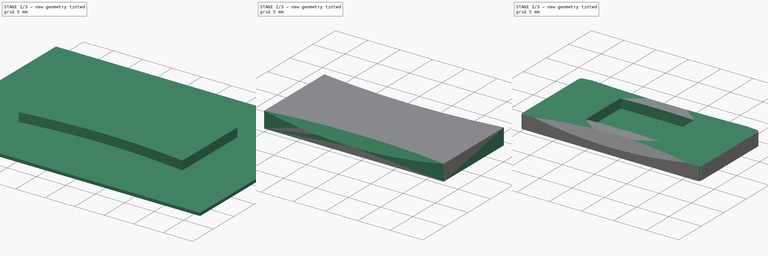
[diagram: build sequence overview — one tinted view per stage of 3, left to right]
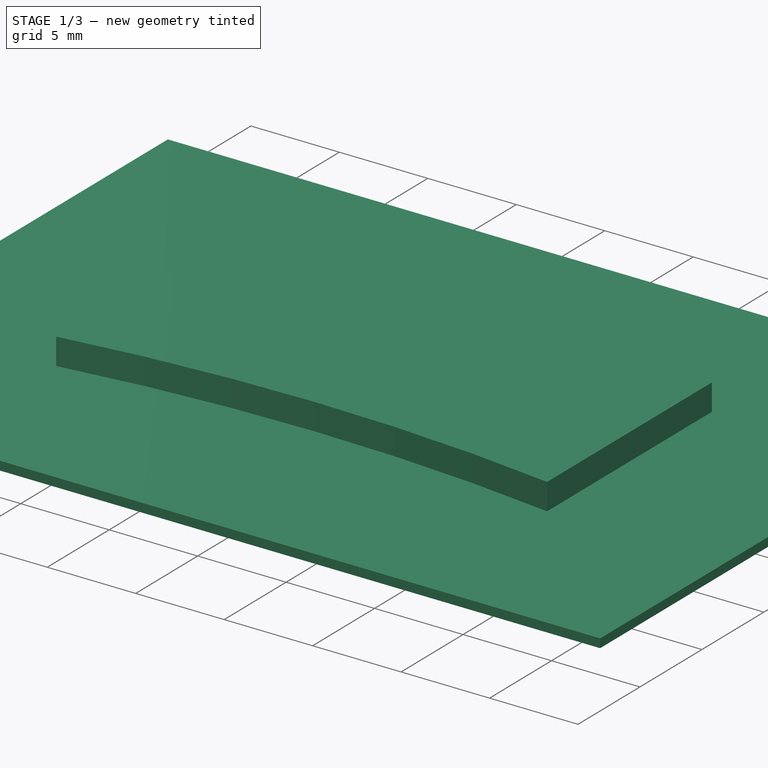
[diagram: stage 1 of 3 — iso view after this stage's code; geometry added in this stage tinted green]
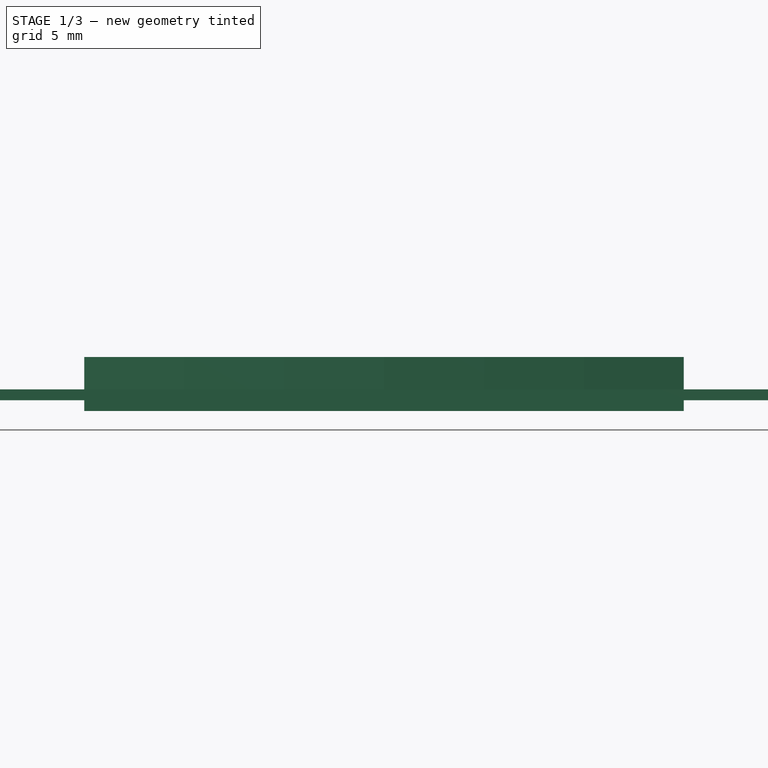
[diagram: stage 1 of 3 — front view after this stage's code; geometry added in this stage tinted green]
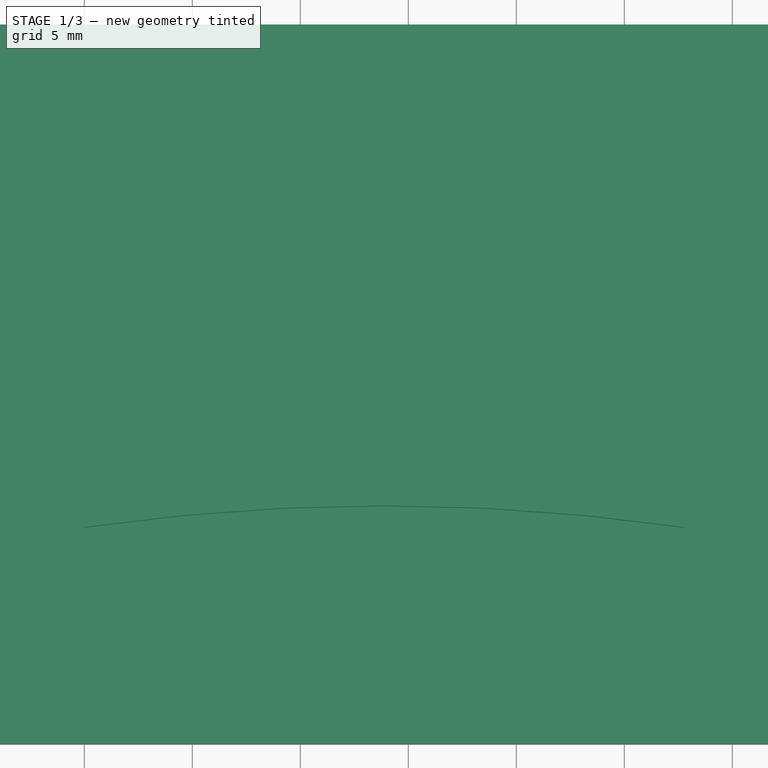
[diagram: stage 1 of 3 — top view after this stage's code; geometry added in this stage tinted green]
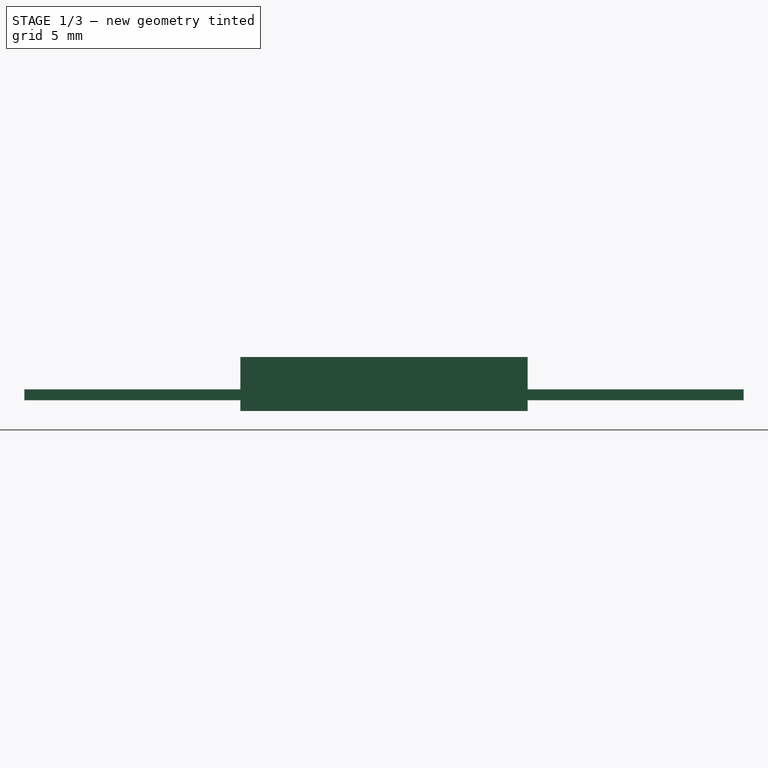
[diagram: stage 1 of 3 — right view after this stage's code; geometry added in this stage tinted green]
FCSTD DOCUMENT  (FreeCAD 0.20R29177 +426 (Git))
Label: GBM Icon
License: All rights reserved
LicenseURL: http://en.wikipedia.org/wiki/All_rights_reserved
objects: Sketcher::SketchObject×5, PartDesign::Pad×3, PartDesign::Pocket×3, PartDesign::Chamfer×1, PartDesign::Fillet×1, PartDesign::Body×1
note: 22 computed .brp shape members not serialized (recipe doc carries the construction recipe); baked Part::Feature solids carry a one-line shape summary decoded from their .brp

FEATURE [Sketcher::SketchObject] Sketch
  FullyConstrained = true
  MapMode = 5
  Support = -> [XY_Plane]
  sketch-geometry (4):
    g0: LineSegment StartX=0 StartY=0 StartZ=0 EndX=27.75 EndY=0 EndZ=0
    g1: LineSegment StartX=27.75 StartY=0 StartZ=0 EndX=27.75 EndY=13.3 EndZ=0
    g2: LineSegment StartX=27.75 StartY=13.3 StartZ=0 EndX=0 EndY=13.3 EndZ=0
    g3: LineSegment StartX=0 StartY=13.3 StartZ=0 EndX=0 EndY=0 EndZ=0
  constraints (11):
    c: Coincident(g0,g1)
    c: Coincident(g1,g2)
    c: Coincident(g2,g3)
    c: Coincident(g3,g0)
    c: Horizontal(g0)
    c: Horizontal(g2)
    c: Vertical(g1)
    c: Vertical(g3)
    c: Coincident(g0,g-1)
    c: Distance(g0) = 27.75
    c: Distance(g1) = 13.3
FEATURE [PartDesign::Pad] Pad
  Direction = (0,0,1)
  Length = 1
  Length2 = 10
  Profile = -> Sketch
  ReferenceAxis = -> Sketch [N_Axis]
  Type = 0
FEATURE [Sketcher::SketchObject] Sketch001
  ExternalGeometry = -> [Pad]
  FullyConstrained = true
  MapMode = 5
  Placement = pos=(0,0,1) rot=(0,0,1;0rad)
  Support = -> [Pad]
  sketch-geometry (6):
    g0: ArcOfCircle CenterX=13.875 CenterY=109.058 CenterZ=0 NormalX=0 NormalY=0 NormalZ=1 AngleXU=0 Radius=96.7578 StartAngle=4.56849 EndAngle=4.85628
    g1: ArcOfCircle CenterX=13.875 CenterY=-95.7578 CenterZ=0 NormalX=0 NormalY=0 NormalZ=1 AngleXU=0 Radius=96.7578 StartAngle=1.4269 EndAngle=1.71469
    g2: LineSegment StartX=3.73e-14 StartY=13.3 StartZ=0 EndX=0 EndY=0 EndZ=0
    g3: LineSegment StartX=27.75 StartY=0 StartZ=0 EndX=27.75 EndY=13.3 EndZ=0
    g4: LineSegment StartX=13.875 StartY=1 StartZ=0 EndX=13.875 EndY=0 EndZ=0
    g5: LineSegment StartX=13.875 StartY=12.3 StartZ=0 EndX=13.875 EndY=13.3 EndZ=0
  constraints (16):
    c: Coincident(g0,g-4)
    c: Coincident(g0,g-4)
    c: Coincident(g1,g-3)
    c: Coincident(g1,g-3)
    c: Coincident(g2,g0)
    c: Coincident(g2,g1)
    c: Coincident(g3,g1)
    c: Coincident(g3,g0)
    c: PointOnObject(g4,g1)
    c: Vertical(g4)
    c: PointOnObject(g5,g0)
    c: Vertical(g5)
    c: Symmetric(g0,g0,g5)
    c: Symmetric(g1,g1,g4)
    c: Equal(g5,g4)
    c: Distance(g5) = 1
FEATURE [PartDesign::Pad] Pad001
  BaseFeature = -> Pad
  Direction = (0,0,1)
  Length = 1.5
  Length2 = 10
  Profile = -> Sketch001
  ReferenceAxis = -> Sketch001 [N_Axis]
  Type = 0
FEATURE [Sketcher::SketchObject] Sketch002
  ExternalGeometry = -> [Pad001]
  FullyConstrained = true
  MapMode = 5
  Placement = pos=(0,0,0) rot=(1,0,0;3.14159rad)
  Support = -> [Pad001]
  sketch-geometry (12):
    g0: LineSegment StartX=0 StartY=0 StartZ=0 EndX=-10 EndY=0 EndZ=0
    g1: LineSegment StartX=-10 StartY=0 StartZ=0 EndX=-10 EndY=10 EndZ=0
    g2: LineSegment StartX=-10 StartY=10 StartZ=0 EndX=0 EndY=10 EndZ=0
    g3: LineSegment StartX=0 StartY=10 StartZ=0 EndX=0 EndY=0 EndZ=0
    g4: LineSegment StartX=27.75 StartY=-13.3 StartZ=0 EndX=37.75 EndY=-13.3 EndZ=0
    g5: LineSegment StartX=37.75 StartY=-13.3 StartZ=0 EndX=37.75 EndY=-23.3 EndZ=0
    g6: LineSegment StartX=37.75 StartY=-23.3 StartZ=0 EndX=27.75 EndY=-23.3 EndZ=0
    g7: LineSegment StartX=27.75 StartY=-23.3 StartZ=0 EndX=27.75 EndY=-13.3 EndZ=0
    g8: LineSegment StartX=-10 StartY=10 StartZ=0 EndX=37.75 EndY=10 EndZ=0
    g9: LineSegment StartX=37.75 StartY=10 StartZ=0 EndX=37.75 EndY=-23.3 EndZ=0
    g10: LineSegment StartX=37.75 StartY=-23.3 StartZ=0 EndX=-10 EndY=-23.3 EndZ=0
    g11: LineSegment StartX=-10 StartY=-23.3 StartZ=0 EndX=-10 EndY=10 EndZ=0
  constraints (32):
    c: Coincident(g0,g1)
    c: Coincident(g1,g2)
    c: Coincident(g2,g3)
    c: Coincident(g3,g0)
    c: Horizontal(g0)
    c: Horizontal(g2)
    c: Vertical(g1)
    c: Vertical(g3)
    c: Coincident(g0,g-1)
    c: Coincident(g4,g5)
    c: Coincident(g5,g6)
    c: Coincident(g6,g7)
    c: Coincident(g7,g4)
    c: Horizontal(g4)
    c: Horizontal(g6)
    c: Vertical(g5)
    c: Vertical(g7)
    c: Coincident(g4,g-3)
    c: Equal(g2,g3)
    c: Equal(g4,g5)
    c: Coincident(g8,g9)
    c: Coincident(g9,g10)
    c: Coincident(g10,g11)
    c: Coincident(g11,g8)
    c: Horizontal(g8)
    c: Horizontal(g10)
    c: Vertical(g9)
    c: Vertical(g11)
    c: Coincident(g8,g1)
    c: Coincident(g9,g5)
    c: Equal(g0,g7)
    c: Distance(g0) = 10
FEATURE [PartDesign::Pad] Pad002
  BaseFeature = -> Pad001
  Direction = (0,0,-1)
  Length = 1
  Length2 = -0.5
  Profile = -> Sketch002
  ReferenceAxis = -> Sketch002 [N_Axis]
  Refine = true
  Reversed = true
  Type = 4
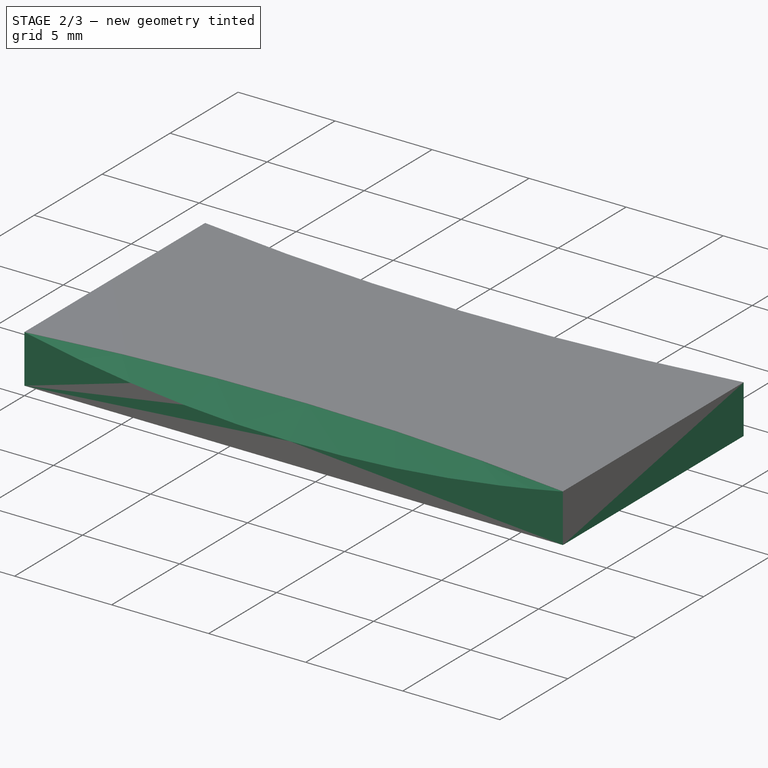
[diagram: stage 2 of 3 — iso view after this stage's code; geometry added in this stage tinted green]
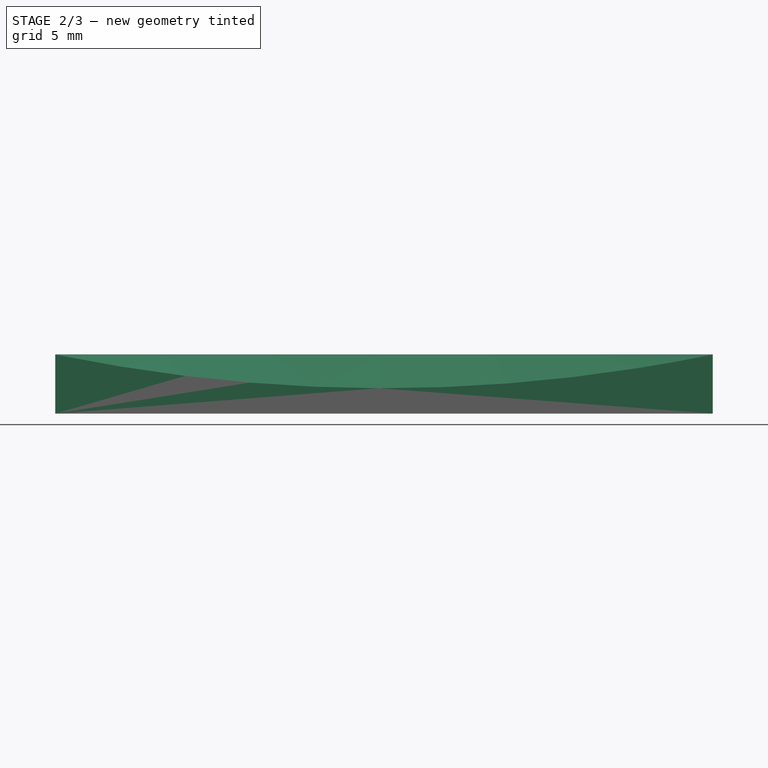
[diagram: stage 2 of 3 — front view after this stage's code; geometry added in this stage tinted green]
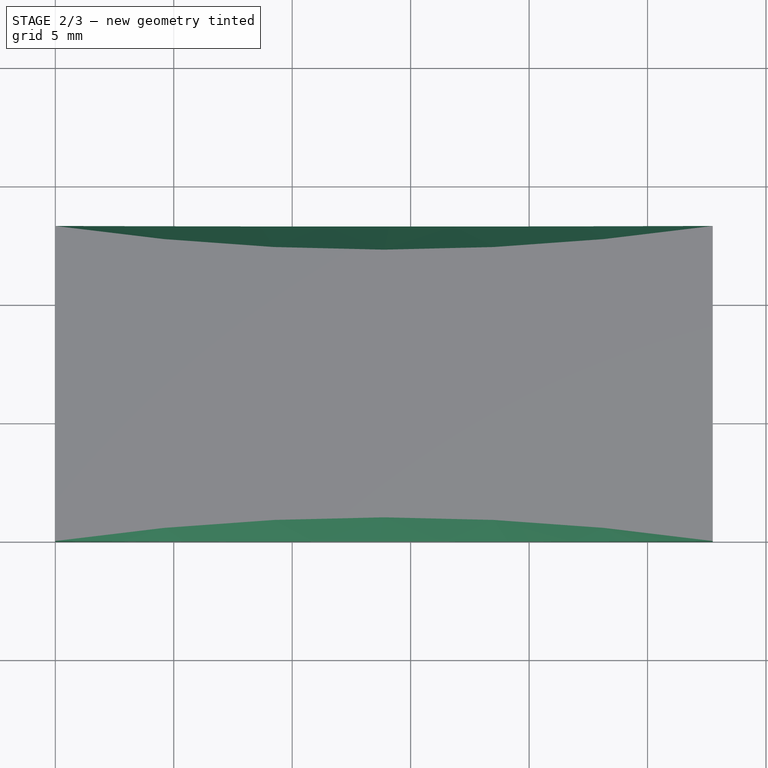
[diagram: stage 2 of 3 — top view after this stage's code; geometry added in this stage tinted green]
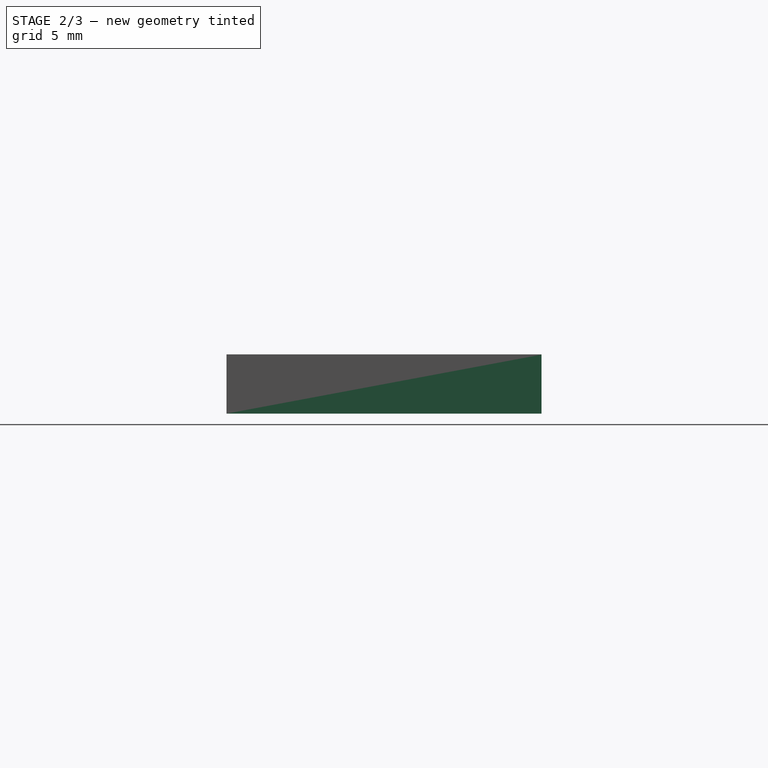
[diagram: stage 2 of 3 — right view after this stage's code; geometry added in this stage tinted green]
FEATURE [PartDesign::Chamfer] Chamfer
  Angle = 45
  Base = -> Pad002 [Edge28,Edge26]
  BaseFeature = -> Pad002
  ChamferType = 1
  FlipDirection = false
  Size = 1.05
  Size2 = 1.49
  SupportTransform = false
  UseAllEdges = false
FEATURE [PartDesign::Pocket] Pocket
  BaseFeature = -> Chamfer
  Direction = (0,0,1)
  Length = 5
  Length2 = 5
  Profile = -> Chamfer [Face13]
  Refine = true
  Type = 0
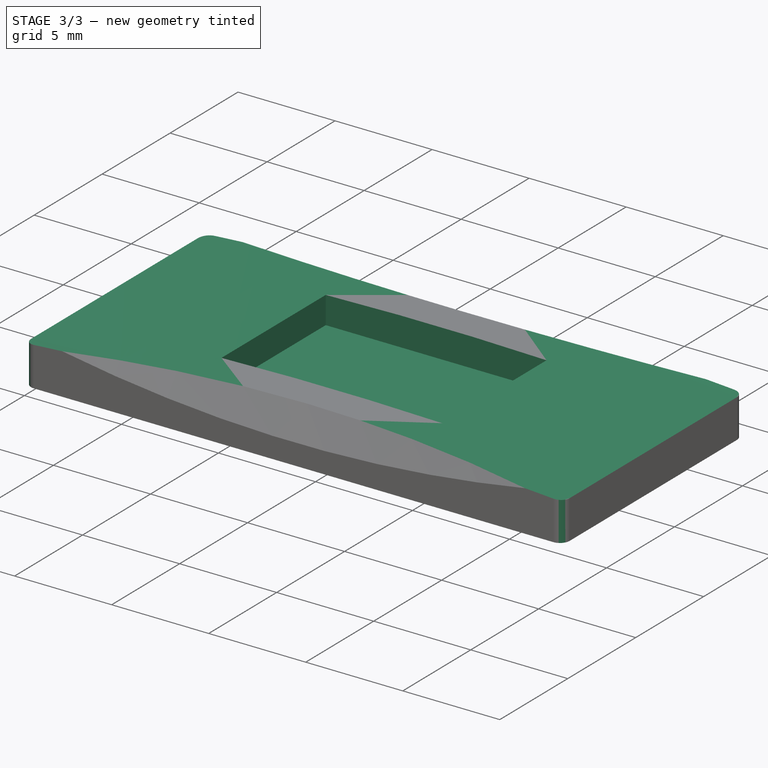
[diagram: stage 3 of 3 — iso view after this stage's code; geometry added in this stage tinted green]
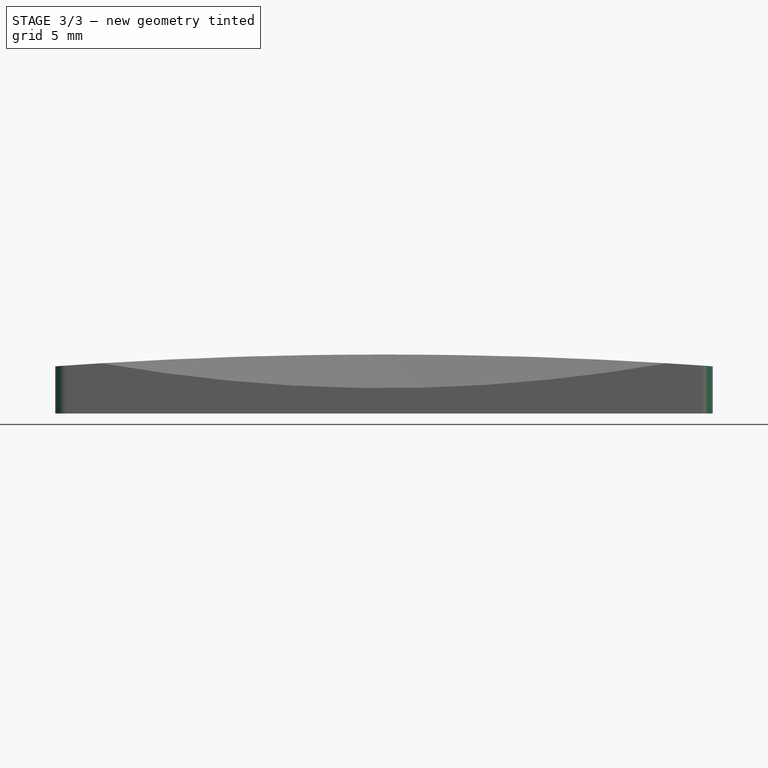
[diagram: stage 3 of 3 — front view after this stage's code; geometry added in this stage tinted green]
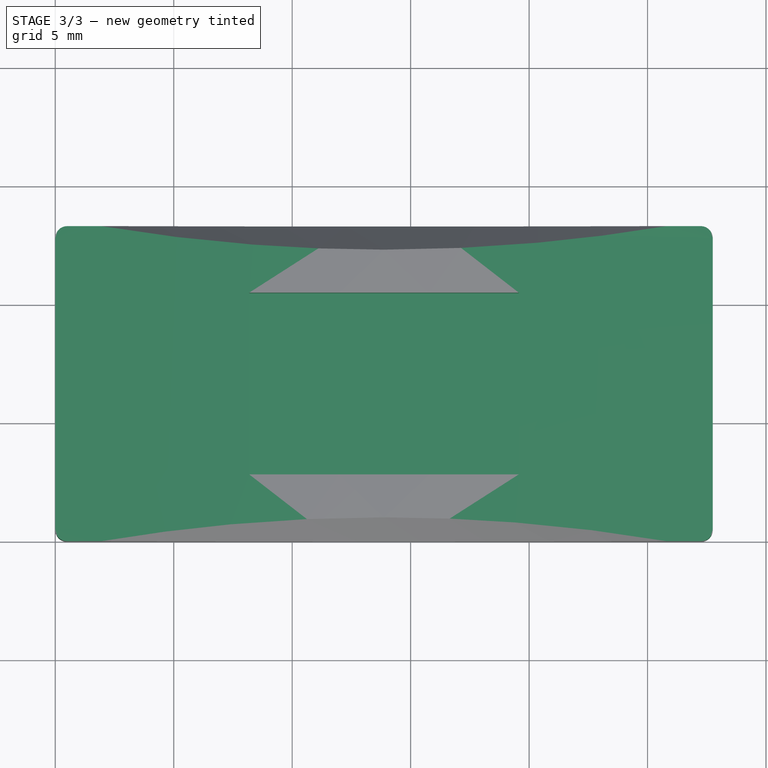
[diagram: stage 3 of 3 — top view after this stage's code; geometry added in this stage tinted green]
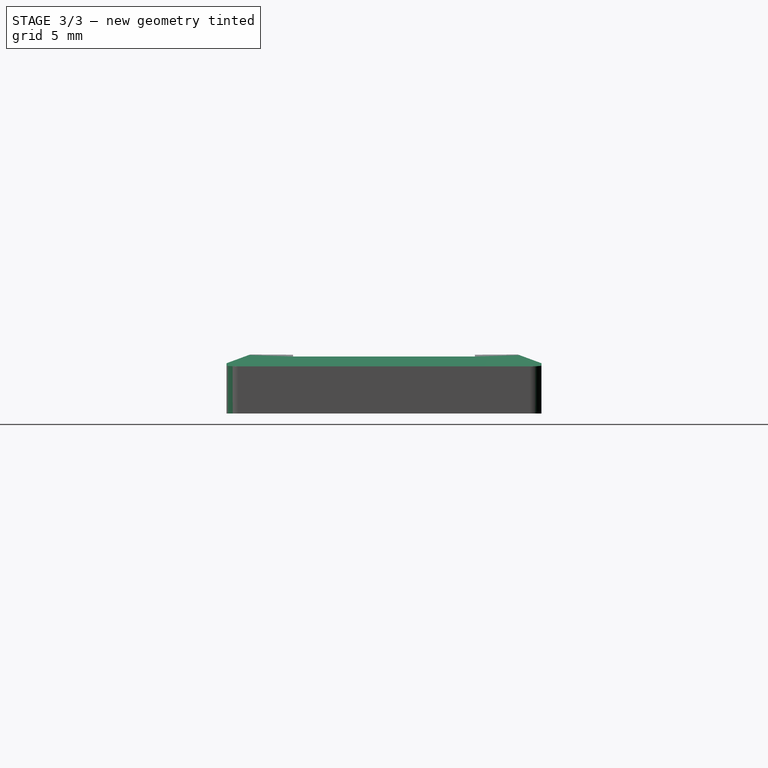
[diagram: stage 3 of 3 — right view after this stage's code; geometry added in this stage tinted green]
FEATURE [Sketcher::SketchObject] Sketch003
  ExternalGeometry = -> [Pocket]
  FullyConstrained = true
  MapMode = 5
  Placement = pos=(0,13.3,1.99e-14) rot=(0,0.707107,0.707107;3.14159rad)
  Support = -> [Pocket]
  sketch-geometry (6):
    g0: LineSegment StartX=-27.75 StartY=2.49 StartZ=0 EndX=-27.75 EndY=1.99 EndZ=0
    g1: LineSegment StartX=-27.75 StartY=2.49 StartZ=0 EndX=-27.75 EndY=2.99 EndZ=0
    g2: LineSegment StartX=-27.75 StartY=2.99 StartZ=0 EndX=0 EndY=2.99 EndZ=0
    g3: LineSegment StartX=0 StartY=2.99 StartZ=0 EndX=-3.73e-14 EndY=2.49 EndZ=0
    g4: LineSegment StartX=-3.73e-14 StartY=2.49 StartZ=0 EndX=2.61746e-11 EndY=1.99 EndZ=0
    g5: ArcOfCircle CenterX=-13.875 CenterY=-190.276 CenterZ=0 NormalX=0 NormalY=0 NormalZ=1 AngleXU=0 Radius=192.766 StartAngle=1.49876 EndAngle=1.64284
  constraints (17):
    c: Coincident(g0,g-3)
    c: Vertical(g0)
    c: Coincident(g1,g0)
    c: Vertical(g1)
    c: Coincident(g2,g1)
    c: PointOnObject(g2,g-2)
    c: Horizontal(g2)
    c: Coincident(g3,g2)
    c: Coincident(g3,g-3)
    c: Coincident(g4,g3)
    c: PointOnObject(g4,g-2)
    c: Coincident(g5,g0)
    c: Coincident(g5,g4)
    c: Tangent(g5,g-3)
    c: Equal(g0,g4)
    c: Equal(g4,g3)
    c: Distance(g4) = 0.5
FEATURE [PartDesign::Pocket] Pocket001
  BaseFeature = -> Pocket
  Direction = (0,-1,-1.8e-15)
  Length = 30
  Length2 = 5
  Profile = -> Sketch003
  ReferenceAxis = -> Sketch003 [N_Axis]
  Type = 0
FEATURE [PartDesign::Fillet] Fillet
  Base = -> Pocket001 [Edge11,Edge7,Edge15,Edge8]
  BaseFeature = -> Pocket001
  Radius = 0.5
  SupportTransform = false
  UseAllEdges = false
FEATURE [Sketcher::SketchObject] Sketch004
  ExternalGeometry = -> [Pocket]
  FullyConstrained = true
  MapMode = 5
  Placement = pos=(0,0,2.5) rot=(0,0,1;0rad)
  Support = -> [Pocket]
  sketch-geometry (12):
    g0: LineSegment StartX=0 StartY=0 StartZ=0 EndX=8.1865 EndY=0 EndZ=0
    g1: LineSegment StartX=8.1865 StartY=0 StartZ=0 EndX=8.1865 EndY=2.8135 EndZ=0
    g2: LineSegment StartX=8.1865 StartY=2.8135 StartZ=0 EndX=0 EndY=2.8135 EndZ=0
    g3: LineSegment StartX=0 StartY=2.8135 StartZ=0 EndX=0 EndY=0 EndZ=0
    g4: LineSegment StartX=27.75 StartY=13.3 StartZ=0 EndX=19.5635 EndY=13.3 EndZ=0
    g5: LineSegment StartX=19.5635 StartY=13.3 StartZ=0 EndX=19.5635 EndY=10.4865 EndZ=0
    g6: LineSegment StartX=19.5635 StartY=10.4865 StartZ=0 EndX=27.75 EndY=10.4865 EndZ=0
    g7: LineSegment StartX=27.75 StartY=10.4865 StartZ=0 EndX=27.75 EndY=13.3 EndZ=0
    g8: LineSegment StartX=8.1865 StartY=2.8135 StartZ=0 EndX=19.5635 EndY=2.8135 EndZ=0
    g9: LineSegment StartX=19.5635 StartY=2.8135 StartZ=0 EndX=19.5635 EndY=10.4865 EndZ=0
    g10: LineSegment StartX=19.5635 StartY=10.4865 StartZ=0 EndX=8.1865 EndY=10.4865 EndZ=0
    g11: LineSegment StartX=8.1865 StartY=10.4865 StartZ=0 EndX=8.1865 EndY=2.8135 EndZ=0
  constraints (32):
    c: Coincident(g0,g1)
    c: Coincident(g1,g2)
    c: Coincident(g2,g3)
    c: Coincident(g3,g0)
    c: Horizontal(g0)
    c: Horizontal(g2)
    c: Vertical(g1)
    c: Vertical(g3)
    c: Coincident(g0,g-1)
    c: Coincident(g4,g5)
    c: Coincident(g5,g6)
    c: Coincident(g6,g7)
    c: Coincident(g7,g4)
    c: Horizontal(g4)
    c: Horizontal(g6)
    c: Vertical(g5)
    c: Vertical(g7)
    c: Coincident(g4,g-3)
    c: Coincident(g8,g9)
    c: Coincident(g9,g10)
    c: Coincident(g10,g11)
    c: Coincident(g11,g8)
    c: Horizontal(g8)
    c: Horizontal(g10)
    c: Vertical(g9)
    c: Vertical(g11)
    c: Coincident(g8,g1)
    c: Coincident(g9,g5)
    c: Distance(g11) = 7.673
    c: Distance(g10) = 11.377
    c: Equal(g1,g5)
    c: Equal(g6,g2)
FEATURE [PartDesign::Pocket] Pocket002
  BaseFeature = -> Fillet
  Direction = (0,0,-1)
  Length = 1.5
  Length2 = 5
  Profile = -> Sketch004
  ReferenceAxis = -> Sketch004 [N_Axis]
  Type = 0
FEATURE [PartDesign::Body] Body  label="GBM Icon"
  Group = -> [Sketch,Pad,Sketch001,Pad001,Sketch002,Pad002,Chamfer,Pocket,Sketch003,Pocket001,Fillet,Sketch004,Pocket002]
  Origin = -> Origin
  Tip = -> Pocket002
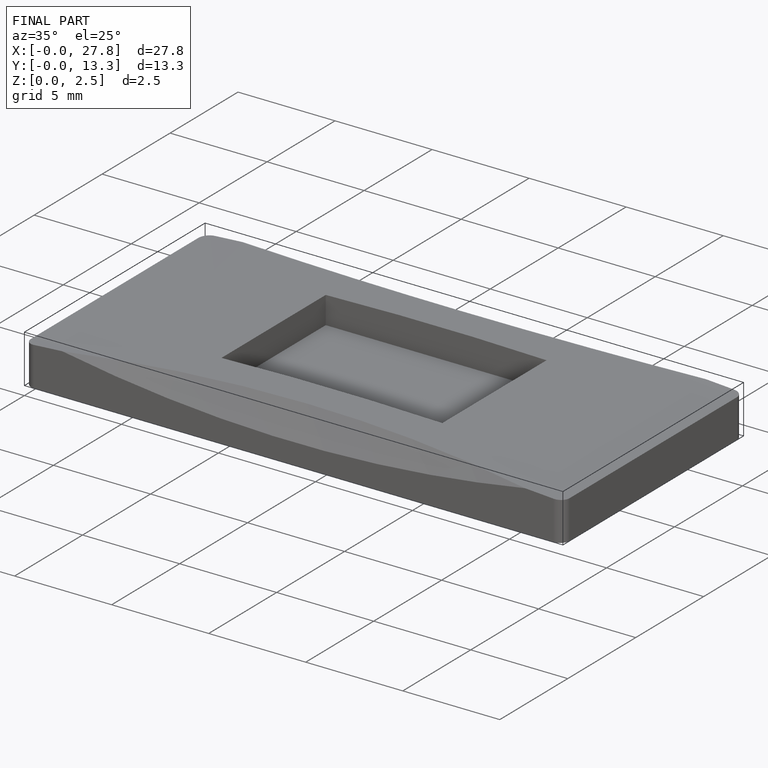
[diagram: finished part — iso view with bounding-box wireframe]
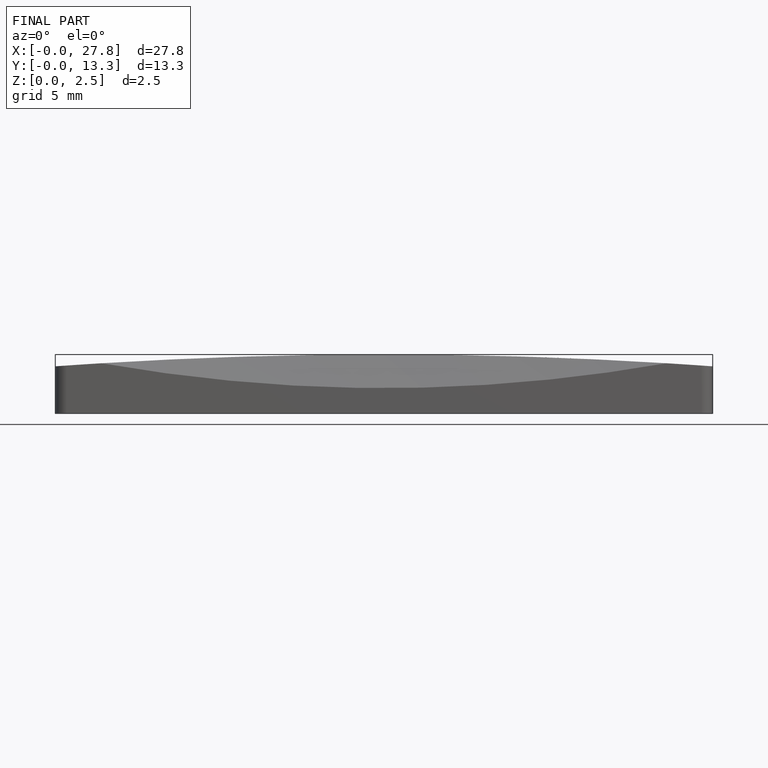
[diagram: finished part — front view with bounding-box wireframe]
